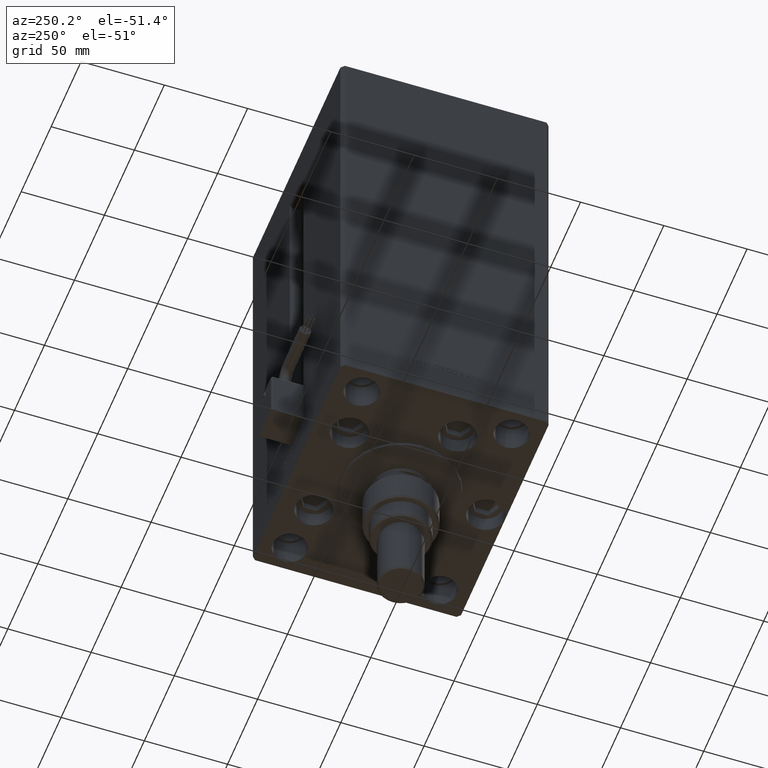
[diagram: clean part render]
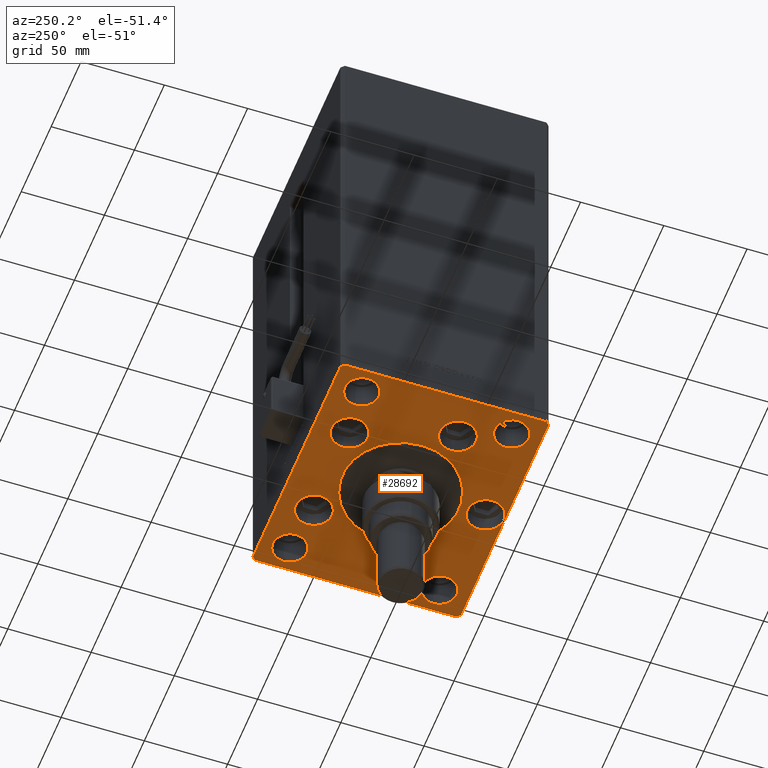
[diagram: same view with one face highlighted and labeled with its STEP entity id]
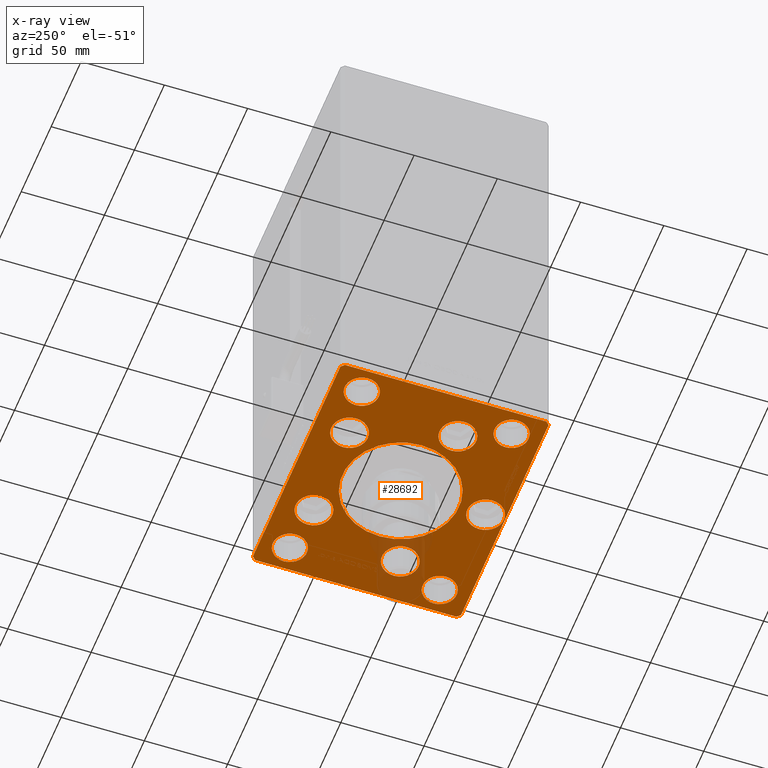
[diagram: x-ray of the same camera — body ghosted, the highlighted face saturated]
A machine part, auxiliary view. The second image highlights one B-rep face of the part: STEP entity #28692.
The next image is the same camera in x-ray: the body ghosted, the highlighted face saturated — about 8% of this face is hidden behind the body in this view.
In plain terms, the highlighted planar face has unit normal (0, 0, -1).
Its self-contained STEP definition (entity closure, byte-faithful):
#523 = EDGE_CURVE ( 'NONE', #38686, #23649, #39013, .T. ) ;
#642 = VERTEX_POINT ( 'NONE', #31467 ) ;
#879 = CARTESIAN_POINT ( 'NONE',  ( 75.00000000000001421, 60.50000000000002842, 0.000000000000000000 ) ) ;
#1117 = CARTESIAN_POINT ( 'NONE',  ( -60.00000000000000711, -45.00000000000000000, 0.000000000000000000 ) ) ;
#1152 = CARTESIAN_POINT ( 'NONE',  ( -75.00000000000000000, -60.50000000000004263, 0.000000000000000000 ) ) ;
#1195 = EDGE_CURVE ( 'NONE', #28837, #37286, #26006, .T. ) ;
#1209 = DIRECTION ( 'NONE',  ( 0.000000000000000000, 0.000000000000000000, 1.000000000000000000 ) ) ;
#1380 = FACE_BOUND ( 'NONE', #8308, .T. ) ;
#1521 = CARTESIAN_POINT ( 'NONE',  ( 73.00000000000001421, -62.49999999999991473, 0.000000000000000000 ) ) ;
#2005 = VECTOR ( 'NONE', #30916, 1000.000000000000114 ) ;
#2088 = VERTEX_POINT ( 'NONE', #20909 ) ;
#2195 = DIRECTION ( 'NONE',  ( 1.000000000000000000, 0.000000000000000000, 0.000000000000000000 ) ) ;
#2251 = AXIS2_PLACEMENT_3D ( 'NONE', #34742, #6295, #43327 ) ;
#2428 = CARTESIAN_POINT ( 'NONE',  ( 0.000000000000000000, 0.000000000000000000, 0.000000000000000000 ) ) ;
#2456 = DIRECTION ( 'NONE',  ( 1.000000000000000000, 0.000000000000000000, 0.000000000000000000 ) ) ;
#2517 = CIRCLE ( 'NONE', #34206, 10.24999999999999467 ) ;
#2996 = DIRECTION ( 'NONE',  ( 0.000000000000000000, 0.000000000000000000, 1.000000000000000000 ) ) ;
#3091 = CARTESIAN_POINT ( 'NONE',  ( -37.08326112068522917, -16.99999999999998934, 0.000000000000000000 ) ) ;
#3254 = LINE ( 'NONE', #6500, #28769 ) ;
#3267 = LINE ( 'NONE', #52915, #12900 ) ;
#3807 = DIRECTION ( 'NONE',  ( 0.000000000000000000, 0.000000000000000000, 1.000000000000000000 ) ) ;
#4287 = VECTOR ( 'NONE', #51417, 1000.000000000000000 ) ;
#4467 = EDGE_CURVE ( 'NONE', #19979, #12327, #25338, .T. ) ;
#4567 = EDGE_LOOP ( 'NONE', ( #10549, #16247 ) ) ;
#4835 = CIRCLE ( 'NONE', #2251, 11.00000000000000355 ) ;
#4886 = CARTESIAN_POINT ( 'NONE',  ( 49.75000000000000000, -45.00000000000000000, 0.000000000000000000 ) ) ;
#5416 = DIRECTION ( 'NONE',  ( 1.000000000000000000, 0.000000000000000000, 0.000000000000000000 ) ) ;
#5483 = EDGE_CURVE ( 'NONE', #12455, #47807, #20196, .T. ) ;
#5677 = FACE_OUTER_BOUND ( 'NONE', #44049, .T. ) ;
#5721 = CARTESIAN_POINT ( 'NONE',  ( -29.73102073172061921, 41.43749999999997868, 0.000000000000000000 ) ) ;
#5790 = EDGE_CURVE ( 'NONE', #2088, #16509, #4835, .T. ) ;
#5836 = ORIENTED_EDGE ( 'NONE', *, *, #43773, .F. ) ;
#6216 = FACE_BOUND ( 'NONE', #25928, .T. ) ;
#6246 = DIRECTION ( 'NONE',  ( 0.000000000000000000, 0.000000000000000000, 1.000000000000000000 ) ) ;
#6291 = CARTESIAN_POINT ( 'NONE',  ( 48.08326112068523628, -16.99999999999998934, 0.000000000000000000 ) ) ;
#6295 = DIRECTION ( 'NONE',  ( 0.000000000000000000, 0.000000000000000000, 1.000000000000000000 ) ) ;
#6474 = DIRECTION ( 'NONE',  ( 0.000000000000000000, 0.000000000000000000, 1.000000000000000000 ) ) ;
#6500 = CARTESIAN_POINT ( 'NONE',  ( 75.00000000000001421, -60.49999999999992184, 0.000000000000000000 ) ) ;
#6649 = LINE ( 'NONE', #31593, #42000 ) ;
#6795 = VERTEX_POINT ( 'NONE', #14686 ) ;
#6805 = CIRCLE ( 'NONE', #47096, 35.00000000000000711 ) ;
#6815 = ORIENTED_EDGE ( 'NONE', *, *, #9079, .F. ) ;
#7623 = CARTESIAN_POINT ( 'NONE',  ( -49.74999999999999289, 45.00000000000000711, 0.000000000000000000 ) ) ;
#7666 = EDGE_LOOP ( 'NONE', ( #11361, #39509 ) ) ;
#8048 = AXIS2_PLACEMENT_3D ( 'NONE', #16528, #1209, #8214 ) ;
#8113 = DIRECTION ( 'NONE',  ( 1.000000000000000000, 0.000000000000000000, 0.000000000000000000 ) ) ;
#8214 = DIRECTION ( 'NONE',  ( 1.000000000000000000, 0.000000000000000000, 0.000000000000000000 ) ) ;
#8308 = EDGE_LOOP ( 'NONE', ( #16503, #41498 ) ) ;
#8505 = ORIENTED_EDGE ( 'NONE', *, *, #44232, .T. ) ;
#9079 = EDGE_CURVE ( 'NONE', #23292, #51277, #12639, .T. ) ;
#9355 = CARTESIAN_POINT ( 'NONE',  ( -75.00000000000000000, 60.50000000000000000, 0.000000000000000000 ) ) ;
#9590 = DIRECTION ( 'NONE',  ( 1.000000000000000000, 0.000000000000000000, 0.000000000000000000 ) ) ;
#9924 = DIRECTION ( 'NONE',  ( 1.000000000000000000, 0.000000000000000000, 0.000000000000000000 ) ) ;
#10031 = EDGE_CURVE ( 'NONE', #642, #24545, #36708, .T. ) ;
#10438 = EDGE_CURVE ( 'NONE', #40081, #22331, #41003, .T. ) ;
#10508 = FACE_BOUND ( 'NONE', #22780, .T. ) ;
#10549 = ORIENTED_EDGE ( 'NONE', *, *, #13793, .F. ) ;
#11214 = CARTESIAN_POINT ( 'NONE',  ( 73.00000000000001421, -62.49999999999991473, 0.000000000000000000 ) ) ;
#11361 = ORIENTED_EDGE ( 'NONE', *, *, #30623, .F. ) ;
#11608 = CARTESIAN_POINT ( 'NONE',  ( -60.00000000000000711, -45.00000000000000000, 0.000000000000000000 ) ) ;
#12073 = CARTESIAN_POINT ( 'NONE',  ( 60.00000000000000000, 45.00000000000000000, 0.000000000000000000 ) ) ;
#12096 = VERTEX_POINT ( 'NONE', #18936 ) ;
#12099 = CARTESIAN_POINT ( 'NONE',  ( -75.00000000000000000, -60.50000000000004263, 0.000000000000000000 ) ) ;
#12183 = ORIENTED_EDGE ( 'NONE', *, *, #49192, .F. ) ;
#12299 = DIRECTION ( 'NONE',  ( 0.000000000000000000, 0.000000000000000000, 1.000000000000000000 ) ) ;
#12327 = VERTEX_POINT ( 'NONE', #21828 ) ;
#12455 = VERTEX_POINT ( 'NONE', #23165 ) ;
#12639 = CIRCLE ( 'NONE', #33216, 10.25000000000000178 ) ;
#12900 = VECTOR ( 'NONE', #20164, 1000.000000000000000 ) ;
#12998 = ORIENTED_EDGE ( 'NONE', *, *, #34471, .T. ) ;
#13143 = ORIENTED_EDGE ( 'NONE', *, *, #48469, .F. ) ;
#13520 = ORIENTED_EDGE ( 'NONE', *, *, #42716, .T. ) ;
#13635 = AXIS2_PLACEMENT_3D ( 'NONE', #33933, #41467, #29381 ) ;
#13793 = EDGE_CURVE ( 'NONE', #47807, #12455, #35966, .T. ) ;
#14060 = CARTESIAN_POINT ( 'NONE',  ( 40.73102073172061921, 41.43749999999997868, 0.000000000000000000 ) ) ;
#14129 = CARTESIAN_POINT ( 'NONE',  ( -72.99999999999998579, 62.49999999999997158, 0.000000000000000000 ) ) ;
#14193 = DIRECTION ( 'NONE',  ( 0.000000000000000000, 0.000000000000000000, 1.000000000000000000 ) ) ;
#14386 = AXIS2_PLACEMENT_3D ( 'NONE', #2428, #29816, #5416 ) ;
#14602 = DIRECTION ( 'NONE',  ( 1.000000000000000000, 0.000000000000000000, 0.000000000000000000 ) ) ;
#14686 = CARTESIAN_POINT ( 'NONE',  ( 73.00000000000001421, 62.50000000000000000, 0.000000000000000000 ) ) ;
#15448 = VERTEX_POINT ( 'NONE', #11214 ) ;
#15913 = EDGE_LOOP ( 'NONE', ( #33776, #31895 ) ) ;
#16065 = CARTESIAN_POINT ( 'NONE',  ( 18.73102073172061921, 41.43749999999997868, 0.000000000000000000 ) ) ;
#16069 = DIRECTION ( 'NONE',  ( 1.000000000000000000, 0.000000000000000000, 0.000000000000000000 ) ) ;
#16234 = ORIENTED_EDGE ( 'NONE', *, *, #10031, .F. ) ;
#16247 = ORIENTED_EDGE ( 'NONE', *, *, #5483, .F. ) ;
#16316 = CIRCLE ( 'NONE', #45464, 11.00000000000000355 ) ;
#16408 = CARTESIAN_POINT ( 'NONE',  ( 35.00000000000000711, -2.652630106891490698E-15, 0.000000000000000000 ) ) ;
#16503 = ORIENTED_EDGE ( 'NONE', *, *, #35612, .F. ) ;
#16509 = VERTEX_POINT ( 'NONE', #3091 ) ;
#16528 = CARTESIAN_POINT ( 'NONE',  ( -29.73102073172061921, 41.43749999999997868, 0.000000000000000000 ) ) ;
#16570 = EDGE_CURVE ( 'NONE', #19798, #45719, #2517, .T. ) ;
#16919 = ORIENTED_EDGE ( 'NONE', *, *, #23570, .T. ) ;
#17312 = EDGE_CURVE ( 'NONE', #50029, #6795, #6649, .T. ) ;
#17633 = CARTESIAN_POINT ( 'NONE',  ( 0.000000000000000000, -6.938893903907228378E-15, 0.000000000000000000 ) ) ;
#18260 = ORIENTED_EDGE ( 'NONE', *, *, #47261, .F. ) ;
#18556 = DIRECTION ( 'NONE',  ( 0.000000000000000000, 1.000000000000000000, 0.000000000000000000 ) ) ;
#18695 = EDGE_LOOP ( 'NONE', ( #13143, #24818 ) ) ;
#18708 = DIRECTION ( 'NONE',  ( -0.7071067811865524577, 0.7071067811865426878, 0.000000000000000000 ) ) ;
#18936 = CARTESIAN_POINT ( 'NONE',  ( -73.00000000000001421, -62.50000000000002842, 0.000000000000000000 ) ) ;
#19073 = ORIENTED_EDGE ( 'NONE', *, *, #30223, .T. ) ;
#19610 = CARTESIAN_POINT ( 'NONE',  ( -75.00000000000000000, 60.50000000000000000, 0.000000000000000000 ) ) ;
#19621 = AXIS2_PLACEMENT_3D ( 'NONE', #29431, #42325, #49850 ) ;
#19683 = AXIS2_PLACEMENT_3D ( 'NONE', #12073, #28444, #40785 ) ;
#19798 = VERTEX_POINT ( 'NONE', #28773 ) ;
#19979 = VERTEX_POINT ( 'NONE', #37264 ) ;
#20164 = DIRECTION ( 'NONE',  ( 1.000000000000000000, 7.604267291953125828E-16, 0.000000000000000000 ) ) ;
#20196 = CIRCLE ( 'NONE', #21067, 10.25000000000000178 ) ;
#20828 = DIRECTION ( 'NONE',  ( 0.000000000000000000, 0.000000000000000000, 1.000000000000000000 ) ) ;
#20881 = DIRECTION ( 'NONE',  ( 1.000000000000000000, 0.000000000000000000, 0.000000000000000000 ) ) ;
#20909 = CARTESIAN_POINT ( 'NONE',  ( -59.08326112068523628, -16.99999999999998934, 0.000000000000000000 ) ) ;
#21067 = AXIS2_PLACEMENT_3D ( 'NONE', #11608, #3807, #8113 ) ;
#21250 = AXIS2_PLACEMENT_3D ( 'NONE', #30084, #42978, #47271 ) ;
#21404 = CIRCLE ( 'NONE', #19683, 10.24999999999999467 ) ;
#21780 = FACE_BOUND ( 'NONE', #7666, .T. ) ;
#21828 = CARTESIAN_POINT ( 'NONE',  ( 11.00000000000000000, -51.00000000000000000, 0.000000000000000000 ) ) ;
#22007 = CARTESIAN_POINT ( 'NONE',  ( 37.08326112068522917, -16.99999999999998934, 0.000000000000000000 ) ) ;
#22194 = DIRECTION ( 'NONE',  ( 0.000000000000000000, 0.000000000000000000, 1.000000000000000000 ) ) ;
#22331 = VERTEX_POINT ( 'NONE', #14060 ) ;
#22459 = DIRECTION ( 'NONE',  ( -0.7071067811865549002, -0.7071067811865401342, 0.000000000000000000 ) ) ;
#22780 = EDGE_LOOP ( 'NONE', ( #46579, #23913 ) ) ;
#22839 = PLANE ( 'NONE',  #14386 ) ;
#23165 = CARTESIAN_POINT ( 'NONE',  ( -70.25000000000000000, -45.00000000000000000, 0.000000000000000000 ) ) ;
#23292 = VERTEX_POINT ( 'NONE', #7623 ) ;
#23570 = EDGE_CURVE ( 'NONE', #35794, #50029, #3254, .T. ) ;
#23649 = VERTEX_POINT ( 'NONE', #52903 ) ;
#23913 = ORIENTED_EDGE ( 'NONE', *, *, #10438, .F. ) ;
#23965 = CIRCLE ( 'NONE', #13635, 11.00000000000000355 ) ;
#24133 = CARTESIAN_POINT ( 'NONE',  ( -60.00000000000000000, 45.00000000000000711, 0.000000000000000000 ) ) ;
#24545 = VERTEX_POINT ( 'NONE', #16408 ) ;
#24616 = EDGE_LOOP ( 'NONE', ( #12183, #49693 ) ) ;
#24818 = ORIENTED_EDGE ( 'NONE', *, *, #5790, .F. ) ;
#25338 = CIRCLE ( 'NONE', #32198, 11.00000000000000000 ) ;
#25427 = ORIENTED_EDGE ( 'NONE', *, *, #1195, .T. ) ;
#25432 = ORIENTED_EDGE ( 'NONE', *, *, #36061, .T. ) ;
#25685 = CARTESIAN_POINT ( 'NONE',  ( 70.25000000000000000, 45.00000000000000000, 0.000000000000000000 ) ) ;
#25928 = EDGE_LOOP ( 'NONE', ( #16234, #18260 ) ) ;
#26006 = LINE ( 'NONE', #9355, #32920 ) ;
#26025 = DIRECTION ( 'NONE',  ( 1.000000000000000000, 0.000000000000000000, 0.000000000000000000 ) ) ;
#26078 = FACE_BOUND ( 'NONE', #52532, .T. ) ;
#26495 = DIRECTION ( 'NONE',  ( 0.7071067811865489050, 0.7071067811865462405, 0.000000000000000000 ) ) ;
#26618 = FACE_BOUND ( 'NONE', #27088, .T. ) ;
#27088 = EDGE_LOOP ( 'NONE', ( #6815, #37146 ) ) ;
#27132 = DIRECTION ( 'NONE',  ( 0.000000000000000000, 0.000000000000000000, 1.000000000000000000 ) ) ;
#27337 = AXIS2_PLACEMENT_3D ( 'NONE', #46424, #14193, #26025 ) ;
#27494 = DIRECTION ( 'NONE',  ( 0.000000000000000000, 0.000000000000000000, 1.000000000000000000 ) ) ;
#28225 = EDGE_CURVE ( 'NONE', #32070, #29183, #29782, .T. ) ;
#28444 = DIRECTION ( 'NONE',  ( 0.000000000000000000, 0.000000000000000000, 1.000000000000000000 ) ) ;
#28470 = DIRECTION ( 'NONE',  ( 0.000000000000000000, 0.000000000000000000, 1.000000000000000000 ) ) ;
#28692 = ADVANCED_FACE ( 'NONE', ( #6216, #26078, #10508, #21780, #50510, #38148, #1380, #26618, #30354, #30617, #5677 ), #22839, .T. ) ;
#28769 = VECTOR ( 'NONE', #18556, 1000.000000000000000 ) ;
#28773 = CARTESIAN_POINT ( 'NONE',  ( 49.75000000000000000, 45.00000000000000000, 0.000000000000000000 ) ) ;
#28790 = CARTESIAN_POINT ( 'NONE',  ( -60.00000000000000000, 45.00000000000000711, 0.000000000000000000 ) ) ;
#28837 = VERTEX_POINT ( 'NONE', #19610 ) ;
#29183 = VERTEX_POINT ( 'NONE', #49061 ) ;
#29381 = DIRECTION ( 'NONE',  ( 1.000000000000000000, 0.000000000000000000, 0.000000000000000000 ) ) ;
#29431 = CARTESIAN_POINT ( 'NONE',  ( -48.08326112068523628, -16.99999999999998934, 0.000000000000000000 ) ) ;
#29782 = CIRCLE ( 'NONE', #21250, 10.25000000000000178 ) ;
#29816 = DIRECTION ( 'NONE',  ( -0.000000000000000000, 0.000000000000000000, 1.000000000000000000 ) ) ;
#29900 = AXIS2_PLACEMENT_3D ( 'NONE', #24133, #12299, #16069 ) ;
#30011 = DIRECTION ( 'NONE',  ( 0.000000000000000000, -1.000000000000000000, 0.000000000000000000 ) ) ;
#30084 = CARTESIAN_POINT ( 'NONE',  ( 60.00000000000000711, -45.00000000000000000, 0.000000000000000000 ) ) ;
#30223 = EDGE_CURVE ( 'NONE', #15448, #35794, #38293, .T. ) ;
#30354 = FACE_BOUND ( 'NONE', #4567, .T. ) ;
#30617 = FACE_BOUND ( 'NONE', #15913, .T. ) ;
#30623 = EDGE_CURVE ( 'NONE', #50195, #51451, #41035, .T. ) ;
#30648 = CARTESIAN_POINT ( 'NONE',  ( 0.000000000000000000, -51.00000000000000000, 0.000000000000000000 ) ) ;
#30709 = CARTESIAN_POINT ( 'NONE',  ( -70.25000000000000000, 45.00000000000000711, 0.000000000000000000 ) ) ;
#30916 = DIRECTION ( 'NONE',  ( 0.7071067811865474617, -0.7071067811865474617, 0.000000000000000000 ) ) ;
#31039 = CARTESIAN_POINT ( 'NONE',  ( -40.73102073172061921, 41.43749999999997868, 0.000000000000000000 ) ) ;
#31467 = CARTESIAN_POINT ( 'NONE',  ( -35.00000000000000711, -6.938893903907228378E-15, 0.000000000000000000 ) ) ;
#31543 = AXIS2_PLACEMENT_3D ( 'NONE', #39787, #2996, #2456 ) ;
#31593 = CARTESIAN_POINT ( 'NONE',  ( 75.00000000000001421, 60.50000000000002842, 0.000000000000000000 ) ) ;
#31895 = ORIENTED_EDGE ( 'NONE', *, *, #28225, .F. ) ;
#31949 = CARTESIAN_POINT ( 'NONE',  ( 60.00000000000000000, 45.00000000000000000, 0.000000000000000000 ) ) ;
#31981 = VECTOR ( 'NONE', #22459, 1000.000000000000000 ) ;
#32070 = VERTEX_POINT ( 'NONE', #4886 ) ;
#32198 = AXIS2_PLACEMENT_3D ( 'NONE', #30648, #6246, #2195 ) ;
#32453 = CIRCLE ( 'NONE', #27337, 11.00000000000000000 ) ;
#32481 = VECTOR ( 'NONE', #26495, 999.9999999999998863 ) ;
#32920 = VECTOR ( 'NONE', #30011, 1000.000000000000000 ) ;
#33216 = AXIS2_PLACEMENT_3D ( 'NONE', #28790, #37115, #37368 ) ;
#33226 = DIRECTION ( 'NONE',  ( 0.000000000000000000, 0.000000000000000000, 1.000000000000000000 ) ) ;
#33776 = ORIENTED_EDGE ( 'NONE', *, *, #40734, .F. ) ;
#33874 = AXIS2_PLACEMENT_3D ( 'NONE', #5721, #20828, #41247 ) ;
#33933 = CARTESIAN_POINT ( 'NONE',  ( 48.08326112068523628, -16.99999999999998934, 0.000000000000000000 ) ) ;
#34206 = AXIS2_PLACEMENT_3D ( 'NONE', #31949, #27132, #48073 ) ;
#34471 = EDGE_CURVE ( 'NONE', #12096, #15448, #3267, .T. ) ;
#34620 = DIRECTION ( 'NONE',  ( 0.000000000000000000, 0.000000000000000000, 1.000000000000000000 ) ) ;
#34742 = CARTESIAN_POINT ( 'NONE',  ( -48.08326112068523628, -16.99999999999998934, 0.000000000000000000 ) ) ;
#35612 = EDGE_CURVE ( 'NONE', #45719, #19798, #21404, .T. ) ;
#35686 = CARTESIAN_POINT ( 'NONE',  ( 59.08326112068523628, -16.99999999999998934, 0.000000000000000000 ) ) ;
#35794 = VERTEX_POINT ( 'NONE', #37530 ) ;
#35966 = CIRCLE ( 'NONE', #45363, 10.25000000000000178 ) ;
#36007 = CARTESIAN_POINT ( 'NONE',  ( 29.73102073172061921, 41.43749999999997868, 0.000000000000000000 ) ) ;
#36061 = EDGE_CURVE ( 'NONE', #6795, #43363, #38531, .T. ) ;
#36708 = CIRCLE ( 'NONE', #31543, 35.00000000000000711 ) ;
#37115 = DIRECTION ( 'NONE',  ( 0.000000000000000000, 0.000000000000000000, 1.000000000000000000 ) ) ;
#37146 = ORIENTED_EDGE ( 'NONE', *, *, #50250, .F. ) ;
#37264 = CARTESIAN_POINT ( 'NONE',  ( -11.00000000000000000, -51.00000000000000000, 0.000000000000000000 ) ) ;
#37286 = VERTEX_POINT ( 'NONE', #12099 ) ;
#37294 = EDGE_CURVE ( 'NONE', #22331, #40081, #16316, .T. ) ;
#37368 = DIRECTION ( 'NONE',  ( 1.000000000000000000, 0.000000000000000000, 0.000000000000000000 ) ) ;
#37530 = CARTESIAN_POINT ( 'NONE',  ( 75.00000000000001421, -60.49999999999992184, 0.000000000000000000 ) ) ;
#37851 = CARTESIAN_POINT ( 'NONE',  ( 60.00000000000000711, -45.00000000000000000, 0.000000000000000000 ) ) ;
#37886 = DIRECTION ( 'NONE',  ( 1.000000000000000000, 0.000000000000000000, 0.000000000000000000 ) ) ;
#38148 = FACE_BOUND ( 'NONE', #18695, .T. ) ;
#38293 = LINE ( 'NONE', #1521, #32481 ) ;
#38531 = LINE ( 'NONE', #46327, #4287 ) ;
#38686 = VERTEX_POINT ( 'NONE', #31039 ) ;
#39013 = CIRCLE ( 'NONE', #33874, 11.00000000000000000 ) ;
#39509 = ORIENTED_EDGE ( 'NONE', *, *, #49789, .F. ) ;
#39787 = CARTESIAN_POINT ( 'NONE',  ( 0.000000000000000000, -6.938893903907228378E-15, 0.000000000000000000 ) ) ;
#40081 = VERTEX_POINT ( 'NONE', #16065 ) ;
#40206 = CIRCLE ( 'NONE', #19621, 11.00000000000000355 ) ;
#40734 = EDGE_CURVE ( 'NONE', #29183, #32070, #49073, .T. ) ;
#40785 = DIRECTION ( 'NONE',  ( 1.000000000000000000, 0.000000000000000000, 0.000000000000000000 ) ) ;
#41003 = CIRCLE ( 'NONE', #50435, 11.00000000000000355 ) ;
#41035 = CIRCLE ( 'NONE', #49612, 11.00000000000000355 ) ;
#41247 = DIRECTION ( 'NONE',  ( 1.000000000000000000, 0.000000000000000000, 0.000000000000000000 ) ) ;
#41467 = DIRECTION ( 'NONE',  ( 0.000000000000000000, 0.000000000000000000, 1.000000000000000000 ) ) ;
#41498 = ORIENTED_EDGE ( 'NONE', *, *, #16570, .F. ) ;
#42000 = VECTOR ( 'NONE', #18708, 1000.000000000000000 ) ;
#42325 = DIRECTION ( 'NONE',  ( 0.000000000000000000, 0.000000000000000000, 1.000000000000000000 ) ) ;
#42475 = LINE ( 'NONE', #1152, #2005 ) ;
#42716 = EDGE_CURVE ( 'NONE', #43363, #28837, #50924, .T. ) ;
#42978 = DIRECTION ( 'NONE',  ( 0.000000000000000000, 0.000000000000000000, 1.000000000000000000 ) ) ;
#43327 = DIRECTION ( 'NONE',  ( 1.000000000000000000, 0.000000000000000000, 0.000000000000000000 ) ) ;
#43363 = VERTEX_POINT ( 'NONE', #46690 ) ;
#43773 = EDGE_CURVE ( 'NONE', #23649, #38686, #44061, .T. ) ;
#44049 = EDGE_LOOP ( 'NONE', ( #8505, #12998, #19073, #16919, #50386, #25432, #13520, #25427 ) ) ;
#44061 = CIRCLE ( 'NONE', #8048, 11.00000000000000000 ) ;
#44232 = EDGE_CURVE ( 'NONE', #37286, #12096, #42475, .T. ) ;
#44838 = DIRECTION ( 'NONE',  ( 1.000000000000000000, 0.000000000000000000, 0.000000000000000000 ) ) ;
#45305 = CARTESIAN_POINT ( 'NONE',  ( 29.73102073172061921, 41.43749999999997868, 0.000000000000000000 ) ) ;
#45363 = AXIS2_PLACEMENT_3D ( 'NONE', #1117, #6474, #37886 ) ;
#45464 = AXIS2_PLACEMENT_3D ( 'NONE', #36007, #28470, #44838 ) ;
#45719 = VERTEX_POINT ( 'NONE', #25685 ) ;
#46327 = CARTESIAN_POINT ( 'NONE',  ( 73.00000000000001421, 62.50000000000000000, 0.000000000000000000 ) ) ;
#46424 = CARTESIAN_POINT ( 'NONE',  ( 0.000000000000000000, -51.00000000000000000, 0.000000000000000000 ) ) ;
#46579 = ORIENTED_EDGE ( 'NONE', *, *, #37294, .F. ) ;
#46690 = CARTESIAN_POINT ( 'NONE',  ( -72.99999999999998579, 62.49999999999997158, 0.000000000000000000 ) ) ;
#47096 = AXIS2_PLACEMENT_3D ( 'NONE', #17633, #22194, #9590 ) ;
#47261 = EDGE_CURVE ( 'NONE', #24545, #642, #6805, .T. ) ;
#47271 = DIRECTION ( 'NONE',  ( 1.000000000000000000, 0.000000000000000000, 0.000000000000000000 ) ) ;
#47807 = VERTEX_POINT ( 'NONE', #48086 ) ;
#48073 = DIRECTION ( 'NONE',  ( 1.000000000000000000, 0.000000000000000000, 0.000000000000000000 ) ) ;
#48086 = CARTESIAN_POINT ( 'NONE',  ( -49.75000000000000000, -45.00000000000000000, 0.000000000000000000 ) ) ;
#48469 = EDGE_CURVE ( 'NONE', #16509, #2088, #40206, .T. ) ;
#49061 = CARTESIAN_POINT ( 'NONE',  ( 70.25000000000000000, -45.00000000000000000, 0.000000000000000000 ) ) ;
#49073 = CIRCLE ( 'NONE', #52494, 10.25000000000000178 ) ;
#49192 = EDGE_CURVE ( 'NONE', #12327, #19979, #32453, .T. ) ;
#49612 = AXIS2_PLACEMENT_3D ( 'NONE', #6291, #27494, #14602 ) ;
#49693 = ORIENTED_EDGE ( 'NONE', *, *, #4467, .F. ) ;
#49789 = EDGE_CURVE ( 'NONE', #51451, #50195, #23965, .T. ) ;
#49850 = DIRECTION ( 'NONE',  ( 1.000000000000000000, 0.000000000000000000, 0.000000000000000000 ) ) ;
#50029 = VERTEX_POINT ( 'NONE', #879 ) ;
#50195 = VERTEX_POINT ( 'NONE', #35686 ) ;
#50250 = EDGE_CURVE ( 'NONE', #51277, #23292, #51347, .T. ) ;
#50386 = ORIENTED_EDGE ( 'NONE', *, *, #17312, .T. ) ;
#50435 = AXIS2_PLACEMENT_3D ( 'NONE', #45305, #33226, #20881 ) ;
#50510 = FACE_BOUND ( 'NONE', #24616, .T. ) ;
#50924 = LINE ( 'NONE', #14129, #31981 ) ;
#51277 = VERTEX_POINT ( 'NONE', #30709 ) ;
#51347 = CIRCLE ( 'NONE', #29900, 10.25000000000000178 ) ;
#51417 = DIRECTION ( 'NONE',  ( -1.000000000000000000, -1.901066822988281950E-16, 0.000000000000000000 ) ) ;
#51451 = VERTEX_POINT ( 'NONE', #22007 ) ;
#51690 = ORIENTED_EDGE ( 'NONE', *, *, #523, .F. ) ;
#52494 = AXIS2_PLACEMENT_3D ( 'NONE', #37851, #34620, #9924 ) ;
#52532 = EDGE_LOOP ( 'NONE', ( #5836, #51690 ) ) ;
#52903 = CARTESIAN_POINT ( 'NONE',  ( -18.73102073172061921, 41.43749999999997868, 0.000000000000000000 ) ) ;
#52915 = CARTESIAN_POINT ( 'NONE',  ( -73.00000000000001421, -62.50000000000002842, 0.000000000000000000 ) ) ;